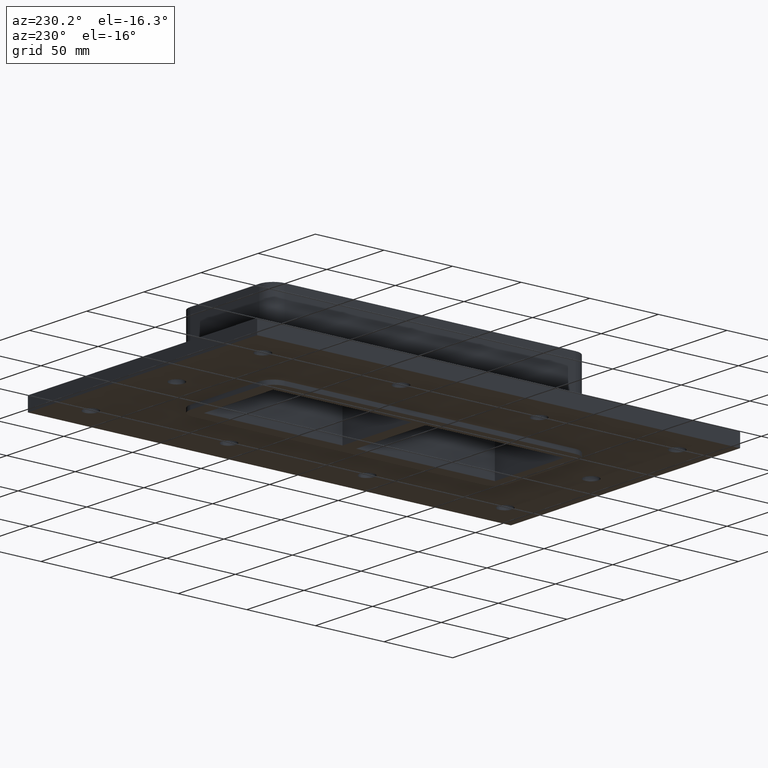
[diagram: clean part render]
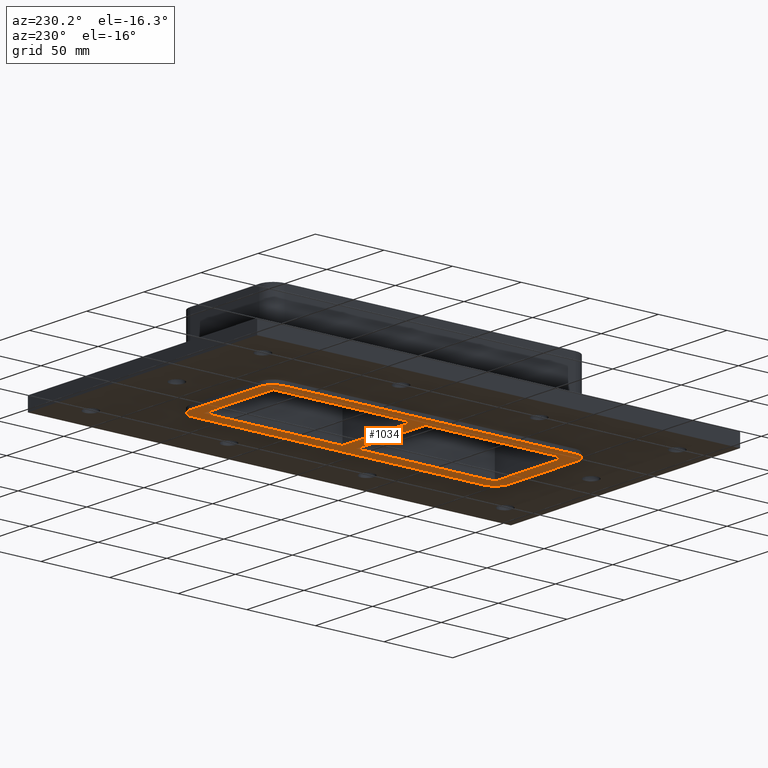
[diagram: same view with one face highlighted and labeled with its STEP entity id]
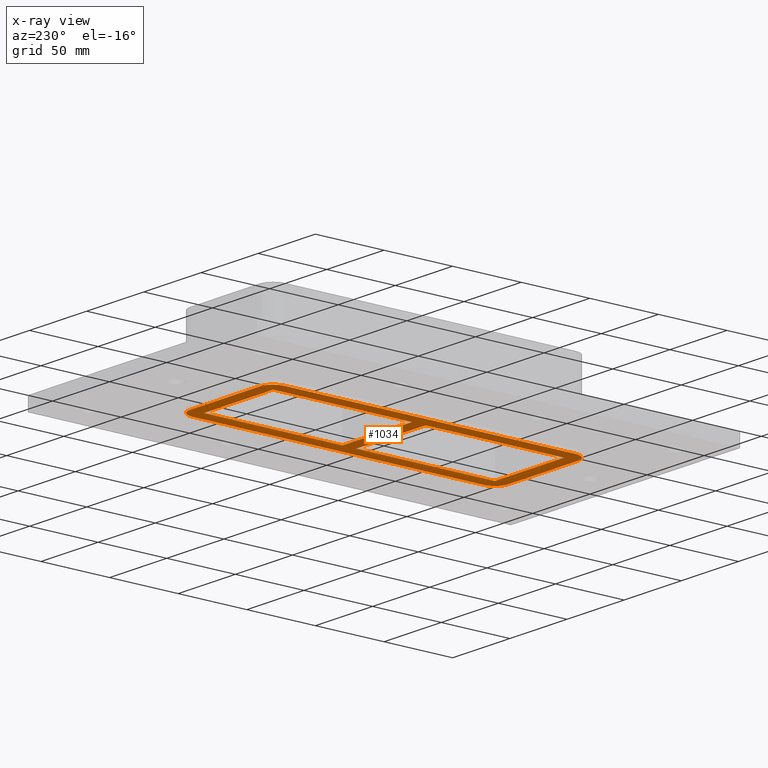
[diagram: x-ray of the same camera — body ghosted, the highlighted face saturated]
A machine part, auxiliary view. The second image highlights one B-rep face of the part: STEP entity #1034.
The next image is the same camera in x-ray: the body ghosted, the highlighted face saturated — about 0% of this face is hidden behind the body in this view.
In plain terms, the highlighted planar face has unit normal (0, 0, 1).
Its self-contained STEP definition (entity closure, byte-faithful):
#702=CARTESIAN_POINT('',(30.249999999999986,-115.99999999999994,-30.0));
#703=VERTEX_POINT('',#702);
#710=CARTESIAN_POINT('',(40.249999999999986,-105.99999999999994,-30.0));
#711=VERTEX_POINT('',#710);
#712=CARTESIAN_POINT('',(30.249999999999986,-105.99999999999994,-30.0));
#713=DIRECTION('',(0.0,0.0,1.0));
#714=DIRECTION('',(0.707106781186547,-0.707106781186547,0.0));
#715=AXIS2_PLACEMENT_3D('',#712,#713,#714);
#716=CIRCLE('',#715,9.999999999999998);
#717=EDGE_CURVE('',#703,#711,#716,.T.);
#766=CARTESIAN_POINT('',(-30.249999999999989,-115.99999999999994,-30.0));
#767=VERTEX_POINT('',#766);
#774=CARTESIAN_POINT('',(30.249999999999986,-115.99999999999994,-30.0));
#775=DIRECTION('',(-1.0,0.0,0.0));
#776=VECTOR('',#775,60.499999999999972);
#777=LINE('',#774,#776);
#778=EDGE_CURVE('',#703,#767,#777,.T.);
#814=CARTESIAN_POINT('',(-40.249999999999986,-105.99999999999996,-30.0));
#815=VERTEX_POINT('',#814);
#822=CARTESIAN_POINT('',(-30.249999999999989,-105.99999999999994,-30.0));
#823=DIRECTION('',(0.0,0.0,1.0));
#824=DIRECTION('',(-0.707106781186547,-0.707106781186548,0.0));
#825=AXIS2_PLACEMENT_3D('',#822,#823,#824);
#826=CIRCLE('',#825,9.999999999999998);
#827=EDGE_CURVE('',#815,#767,#826,.T.);
#864=CARTESIAN_POINT('',(-40.250000000000057,106.00000000000007,-30.0));
#865=VERTEX_POINT('',#864);
#872=CARTESIAN_POINT('',(-40.249999999999986,-105.99999999999996,-30.0));
#873=DIRECTION('',(0.0,1.0,0.0));
#874=VECTOR('',#873,212.00000000000003);
#875=LINE('',#872,#874);
#876=EDGE_CURVE('',#815,#865,#875,.T.);
#912=CARTESIAN_POINT('',(-30.250000000000057,116.00000000000007,-30.0));
#913=VERTEX_POINT('',#912);
#920=CARTESIAN_POINT('',(-30.250000000000053,106.00000000000007,-30.0));
#921=DIRECTION('',(0.0,0.0,1.0));
#922=DIRECTION('',(-0.707106781186548,0.707106781186547,0.0));
#923=AXIS2_PLACEMENT_3D('',#920,#921,#922);
#924=CIRCLE('',#923,10.0);
#925=EDGE_CURVE('',#913,#865,#924,.T.);
#931=CARTESIAN_POINT('',(-2.728484E-014,6.923528E-014,-30.0));
#932=DIRECTION('',(0.0,0.0,1.0));
#933=DIRECTION('',(1.0,0.0,0.0));
#934=AXIS2_PLACEMENT_3D('',#931,#932,#933);
#935=PLANE('',#934);
#936=ORIENTED_EDGE('',*,*,#717,.F.);
#937=ORIENTED_EDGE('',*,*,#778,.T.);
#938=ORIENTED_EDGE('',*,*,#827,.F.);
#939=ORIENTED_EDGE('',*,*,#876,.T.);
#940=ORIENTED_EDGE('',*,*,#925,.F.);
#941=CARTESIAN_POINT('',(30.24999999999995,116.00000000000007,-30.0));
#942=VERTEX_POINT('',#941);
#943=CARTESIAN_POINT('',(-30.25000000000005,116.00000000000007,-30.0));
#944=DIRECTION('',(1.0,0.0,0.0));
#945=VECTOR('',#944,60.5);
#946=LINE('',#943,#945);
#947=EDGE_CURVE('',#913,#942,#946,.T.);
#948=ORIENTED_EDGE('',*,*,#947,.T.);
#949=CARTESIAN_POINT('',(40.24999999999995,106.00000000000009,-30.0));
#950=VERTEX_POINT('',#949);
#951=CARTESIAN_POINT('',(30.24999999999995,106.00000000000007,-30.0));
#952=DIRECTION('',(0.0,0.0,1.0));
#953=DIRECTION('',(0.707106781186547,0.707106781186547,0.0));
#954=AXIS2_PLACEMENT_3D('',#951,#952,#953);
#955=CIRCLE('',#954,9.999999999999998);
#956=EDGE_CURVE('',#950,#942,#955,.T.);
#957=ORIENTED_EDGE('',*,*,#956,.F.);
#958=CARTESIAN_POINT('',(40.24999999999995,106.00000000000009,-30.0));
#959=DIRECTION('',(0.0,-1.0,0.0));
#960=VECTOR('',#959,212.00000000000003);
#961=LINE('',#958,#960);
#962=EDGE_CURVE('',#950,#711,#961,.T.);
#963=ORIENTED_EDGE('',*,*,#962,.T.);
#964=EDGE_LOOP('',(#936,#937,#938,#939,#940,#948,#957,#963));
#965=FACE_OUTER_BOUND('',#964,.T.);
#966=CARTESIAN_POINT('',(-30.250000000000057,106.00000000000009,-30.0));
#967=VERTEX_POINT('',#966);
#968=CARTESIAN_POINT('',(-30.250000000000025,5.000000000000355,-30.0));
#969=VERTEX_POINT('',#968);
#970=CARTESIAN_POINT('',(-30.250000000000057,106.00000000000009,-30.0));
#971=DIRECTION('',(0.0,-1.0,0.0));
#972=VECTOR('',#971,100.99999999999973);
#973=LINE('',#970,#972);
#974=EDGE_CURVE('',#967,#969,#973,.T.);
#975=ORIENTED_EDGE('',*,*,#974,.T.);
#976=CARTESIAN_POINT('',(30.249999999999979,5.000000000000071,-30.0));
#977=VERTEX_POINT('',#976);
#978=CARTESIAN_POINT('',(-30.250000000000025,5.000000000000355,-30.0));
#979=DIRECTION('',(1.0,0.0,0.0));
#980=VECTOR('',#979,60.5);
#981=LINE('',#978,#980);
#982=EDGE_CURVE('',#969,#977,#981,.T.);
#983=ORIENTED_EDGE('',*,*,#982,.T.);
#984=CARTESIAN_POINT('',(30.249999999999964,106.00000000000009,-30.0));
#985=VERTEX_POINT('',#984);
#986=CARTESIAN_POINT('',(30.249999999999975,5.000000000000071,-30.0));
#987=DIRECTION('',(0.0,1.0,0.0));
#988=VECTOR('',#987,101.00000000000001);
#989=LINE('',#986,#988);
#990=EDGE_CURVE('',#977,#985,#989,.T.);
#991=ORIENTED_EDGE('',*,*,#990,.T.);
#992=CARTESIAN_POINT('',(30.249999999999961,106.00000000000009,-30.0));
#993=DIRECTION('',(-1.0,0.0,0.0));
#994=VECTOR('',#993,60.500000000000014);
#995=LINE('',#992,#994);
#996=EDGE_CURVE('',#985,#967,#995,.T.);
#997=ORIENTED_EDGE('',*,*,#996,.T.);
#998=EDGE_LOOP('',(#975,#983,#991,#997));
#999=FACE_BOUND('',#998,.T.);
#1000=CARTESIAN_POINT('',(30.250000000000014,-105.99999999999994,-30.0));
#1001=VERTEX_POINT('',#1000);
#1002=CARTESIAN_POINT('',(30.25,-4.999999999999929,-30.0));
#1003=VERTEX_POINT('',#1002);
#1004=CARTESIAN_POINT('',(30.250000000000014,-105.99999999999994,-30.0));
#1005=DIRECTION('',(0.0,1.0,0.0));
#1006=VECTOR('',#1005,101.00000000000001);
#1007=LINE('',#1004,#1006);
#1008=EDGE_CURVE('',#1001,#1003,#1007,.T.);
#1009=ORIENTED_EDGE('',*,*,#1008,.T.);
#1010=CARTESIAN_POINT('',(-30.250000000000021,-4.999999999999938,-30.0));
#1011=VERTEX_POINT('',#1010);
#1012=CARTESIAN_POINT('',(30.249999999999993,-4.999999999999929,-30.0));
#1013=DIRECTION('',(-1.0,0.0,0.0));
#1014=VECTOR('',#1013,60.500000000000014);
#1015=LINE('',#1012,#1014);
#1016=EDGE_CURVE('',#1003,#1011,#1015,.T.);
#1017=ORIENTED_EDGE('',*,*,#1016,.T.);
#1018=CARTESIAN_POINT('',(-30.249999999999989,-105.99999999999966,-30.0));
#1019=VERTEX_POINT('',#1018);
#1020=CARTESIAN_POINT('',(-30.250000000000018,-4.999999999999936,-30.0));
#1021=DIRECTION('',(0.0,-1.0,0.0));
#1022=VECTOR('',#1021,100.99999999999972);
#1023=LINE('',#1020,#1022);
#1024=EDGE_CURVE('',#1011,#1019,#1023,.T.);
#1025=ORIENTED_EDGE('',*,*,#1024,.T.);
#1026=CARTESIAN_POINT('',(-30.249999999999993,-105.99999999999966,-30.0));
#1027=DIRECTION('',(1.0,0.0,0.0));
#1028=VECTOR('',#1027,60.500000000000007);
#1029=LINE('',#1026,#1028);
#1030=EDGE_CURVE('',#1019,#1001,#1029,.T.);
#1031=ORIENTED_EDGE('',*,*,#1030,.T.);
#1032=EDGE_LOOP('',(#1009,#1017,#1025,#1031));
#1033=FACE_BOUND('',#1032,.T.);
#1034=ADVANCED_FACE('',(#965,#999,#1033),#935,.F.);